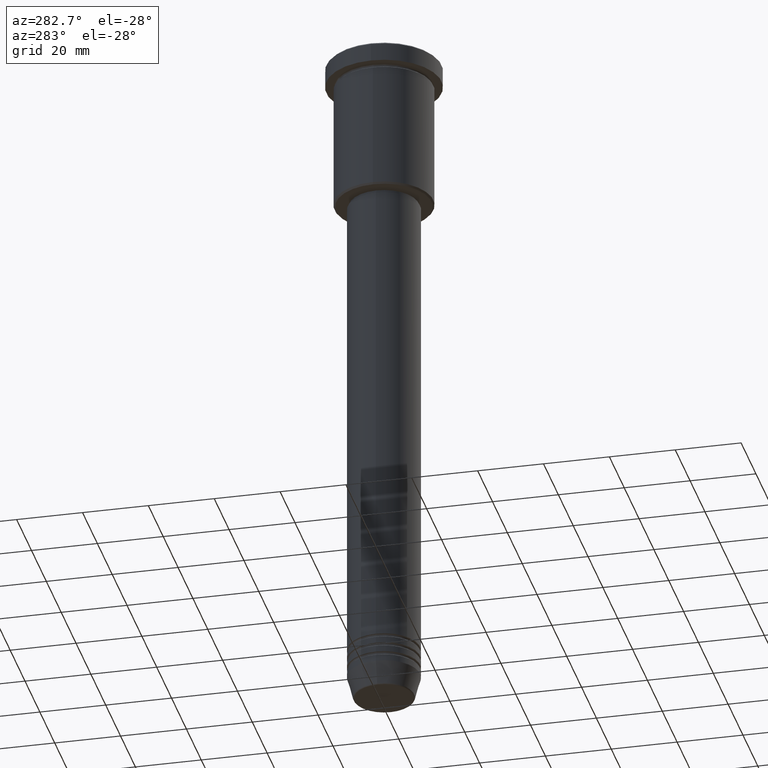
[diagram: clean part render]
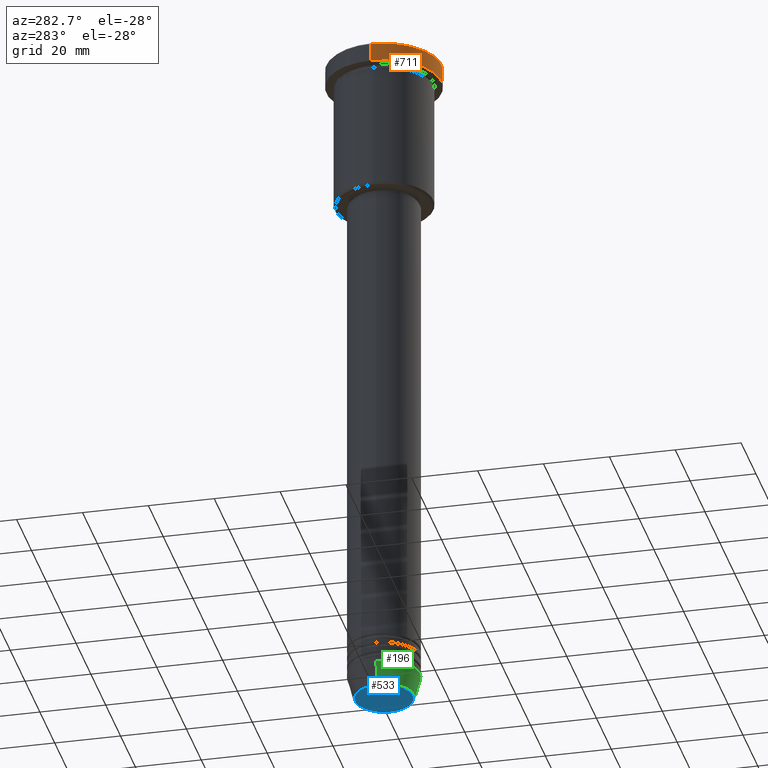
[diagram: same view with three faces highlighted in distinct colors, each labeled with its STEP entity id]
A machine part, auxiliary view with three faces highlighted in distinct colors.
Their STEP definitions:

[orange] entity #711 — the highlighted cylindrical surface (partial cylindrical patch) has radius 17.5 mm, axis along (-0, -0, 1).
#16 = CYLINDRICAL_SURFACE ( 'NONE', #712, 17.50000000000000000 ) ;
#43 = VERTEX_POINT ( 'NONE', #1178 ) ;
#78 = EDGE_CURVE ( 'NONE', #93, #975, #731, .T. ) ;
#93 = VERTEX_POINT ( 'NONE', #167 ) ;
#104 = VERTEX_POINT ( 'NONE', #607 ) ;
#144 = EDGE_LOOP ( 'NONE', ( #185, #1077, #1013, #362 ) ) ;
#167 = CARTESIAN_POINT ( 'NONE',  ( -17.50000000000000000, 2.143131898507868248E-15, -5.999999999999995559 ) ) ;
#181 = VECTOR ( 'NONE', #648, 1000.000000000000000 ) ;
#185 = ORIENTED_EDGE ( 'NONE', *, *, #1167, .F. ) ;
#217 = AXIS2_PLACEMENT_3D ( 'NONE', #713, #699, #1072 ) ;
#280 = CARTESIAN_POINT ( 'NONE',  ( -17.50000000000000000, 2.143131898507868248E-15, 0.000000000000000000 ) ) ;
#353 = EDGE_CURVE ( 'NONE', #104, #43, #870, .T. ) ;
#362 = ORIENTED_EDGE ( 'NONE', *, *, #353, .T. ) ;
#367 = VECTOR ( 'NONE', #943, 1000.000000000000000 ) ;
#463 = FACE_OUTER_BOUND ( 'NONE', #144, .T. ) ;
#470 = DIRECTION ( 'NONE',  ( 0.000000000000000000, 0.000000000000000000, -1.000000000000000000 ) ) ;
#516 = DIRECTION ( 'NONE',  ( 1.000000000000000000, 0.000000000000000000, 0.000000000000000000 ) ) ;
#574 = LINE ( 'NONE', #1032, #367 ) ;
#590 = EDGE_CURVE ( 'NONE', #975, #104, #574, .T. ) ;
#606 = CARTESIAN_POINT ( 'NONE',  ( 0.000000000000000000, 0.000000000000000000, 0.000000000000000000 ) ) ;
#607 = CARTESIAN_POINT ( 'NONE',  ( 17.50000000000000000, 0.000000000000000000, -0.5000000000000559552 ) ) ;
#636 = LINE ( 'NONE', #280, #181 ) ;
#648 = DIRECTION ( 'NONE',  ( -0.000000000000000000, -0.000000000000000000, 1.000000000000000000 ) ) ;
#650 = CARTESIAN_POINT ( 'NONE',  ( 0.000000000000000000, 0.000000000000000000, -0.5000000000000559552 ) ) ;
#675 = AXIS2_PLACEMENT_3D ( 'NONE', #650, #470, #747 ) ;
#699 = DIRECTION ( 'NONE',  ( -0.000000000000000000, -0.000000000000000000, 1.000000000000000000 ) ) ;
#711 = ADVANCED_FACE ( 'NONE', ( #463 ), #16, .T. ) ;
#712 = AXIS2_PLACEMENT_3D ( 'NONE', #606, #973, #516 ) ;
#713 = CARTESIAN_POINT ( 'NONE',  ( 0.000000000000000000, 0.000000000000000000, -5.999999999999995559 ) ) ;
#731 = CIRCLE ( 'NONE', #217, 17.50000000000000000 ) ;
#747 = DIRECTION ( 'NONE',  ( 1.000000000000000000, 0.000000000000000000, 0.000000000000000000 ) ) ;
#870 = CIRCLE ( 'NONE', #675, 17.50000000000000000 ) ;
#896 = CARTESIAN_POINT ( 'NONE',  ( 17.50000000000000000, 0.000000000000000000, -5.999999999999995559 ) ) ;
#943 = DIRECTION ( 'NONE',  ( -0.000000000000000000, -0.000000000000000000, 1.000000000000000000 ) ) ;
#973 = DIRECTION ( 'NONE',  ( -0.000000000000000000, -0.000000000000000000, 1.000000000000000000 ) ) ;
#975 = VERTEX_POINT ( 'NONE', #896 ) ;
#1013 = ORIENTED_EDGE ( 'NONE', *, *, #590, .T. ) ;
#1032 = CARTESIAN_POINT ( 'NONE',  ( 17.50000000000000000, 0.000000000000000000, 0.000000000000000000 ) ) ;
#1072 = DIRECTION ( 'NONE',  ( 1.000000000000000000, 0.000000000000000000, 0.000000000000000000 ) ) ;
#1077 = ORIENTED_EDGE ( 'NONE', *, *, #78, .T. ) ;
#1167 = EDGE_CURVE ( 'NONE', #93, #43, #636, .T. ) ;
#1178 = CARTESIAN_POINT ( 'NONE',  ( -17.50000000000000000, 2.143131898507868248E-15, -0.5000000000000559552 ) ) ;

[blue] entity #533 — the highlighted planar face has unit normal (0, -0, 1).
#30 = AXIS2_PLACEMENT_3D ( 'NONE', #775, #689, #321 ) ;
#83 = AXIS2_PLACEMENT_3D ( 'NONE', #1014, #1036, #663 ) ;
#172 = EDGE_CURVE ( 'NONE', #298, #948, #458, .T. ) ;
#182 = CARTESIAN_POINT ( 'NONE',  ( -8.740692158992663607, 1.099999016768740442E-15, -211.0000000000000284 ) ) ;
#298 = VERTEX_POINT ( 'NONE', #182 ) ;
#309 = CARTESIAN_POINT ( 'NONE',  ( 0.000000000000000000, 0.000000000000000000, -211.0000000000000284 ) ) ;
#317 = FACE_OUTER_BOUND ( 'NONE', #473, .T. ) ;
#321 = DIRECTION ( 'NONE',  ( 1.000000000000000000, 0.000000000000000000, 0.000000000000000000 ) ) ;
#365 = AXIS2_PLACEMENT_3D ( 'NONE', #309, #612, #1160 ) ;
#458 = CIRCLE ( 'NONE', #365, 8.740692158992663607 ) ;
#473 = EDGE_LOOP ( 'NONE', ( #1070, #1047 ) ) ;
#501 = CARTESIAN_POINT ( 'NONE',  ( 8.740692158992663607, 0.000000000000000000, -211.0000000000000284 ) ) ;
#507 = CIRCLE ( 'NONE', #83, 8.740692158992663607 ) ;
#533 = ADVANCED_FACE ( 'NONE', ( #317 ), #1041, .F. ) ;
#612 = DIRECTION ( 'NONE',  ( 0.000000000000000000, 0.000000000000000000, -1.000000000000000000 ) ) ;
#663 = DIRECTION ( 'NONE',  ( 1.000000000000000000, 0.000000000000000000, 0.000000000000000000 ) ) ;
#689 = DIRECTION ( 'NONE',  ( 0.000000000000000000, -0.000000000000000000, 1.000000000000000000 ) ) ;
#775 = CARTESIAN_POINT ( 'NONE',  ( 0.000000000000000000, 0.000000000000000000, -211.0000000000000284 ) ) ;
#802 = EDGE_CURVE ( 'NONE', #948, #298, #507, .T. ) ;
#948 = VERTEX_POINT ( 'NONE', #501 ) ;
#1014 = CARTESIAN_POINT ( 'NONE',  ( 0.000000000000000000, 0.000000000000000000, -211.0000000000000284 ) ) ;
#1036 = DIRECTION ( 'NONE',  ( 0.000000000000000000, 0.000000000000000000, -1.000000000000000000 ) ) ;
#1041 = PLANE ( 'NONE',  #30 ) ;
#1047 = ORIENTED_EDGE ( 'NONE', *, *, #172, .T. ) ;
#1070 = ORIENTED_EDGE ( 'NONE', *, *, #802, .T. ) ;
#1160 = DIRECTION ( 'NONE',  ( 1.000000000000000000, 0.000000000000000000, 0.000000000000000000 ) ) ;

[green] entity #196 — the highlighted conical surface has half-angle 15 deg.
#32 = EDGE_CURVE ( 'NONE', #209, #633, #437, .T. ) ;
#51 = CIRCLE ( 'NONE', #237, 11.00000000000000000 ) ;
#82 = VECTOR ( 'NONE', #1082, 1000.000000000000000 ) ;
#150 = CARTESIAN_POINT ( 'NONE',  ( 11.00000000000000000, 0.000000000000000000, -204.0000000000000284 ) ) ;
#178 = CONICAL_SURFACE ( 'NONE', #657, 11.00000000000000000, 0.2617993877991500740 ) ;
#196 = ADVANCED_FACE ( 'NONE', ( #1060 ), #178, .T. ) ;
#209 = VERTEX_POINT ( 'NONE', #632 ) ;
#221 = EDGE_CURVE ( 'NONE', #890, #449, #51, .T. ) ;
#228 = ORIENTED_EDGE ( 'NONE', *, *, #32, .T. ) ;
#237 = AXIS2_PLACEMENT_3D ( 'NONE', #1089, #281, #906 ) ;
#247 = EDGE_CURVE ( 'NONE', #209, #890, #454, .T. ) ;
#267 = CARTESIAN_POINT ( 'NONE',  ( -11.00000000000000000, 1.347111479062088405E-15, -204.0000000000000284 ) ) ;
#268 = CARTESIAN_POINT ( 'NONE',  ( -11.00000000000000000, 1.347111479062088405E-15, -204.0000000000000284 ) ) ;
#281 = DIRECTION ( 'NONE',  ( -0.000000000000000000, -0.000000000000000000, 1.000000000000000000 ) ) ;
#337 = DIRECTION ( 'NONE',  ( 1.000000000000000000, 0.000000000000000000, 0.000000000000000000 ) ) ;
#375 = ORIENTED_EDGE ( 'NONE', *, *, #247, .F. ) ;
#437 = CIRCLE ( 'NONE', #611, 9.223655072137194821 ) ;
#449 = VERTEX_POINT ( 'NONE', #150 ) ;
#454 = LINE ( 'NONE', #268, #82 ) ;
#556 = DIRECTION ( 'NONE',  ( -0.000000000000000000, -0.000000000000000000, 1.000000000000000000 ) ) ;
#591 = LINE ( 'NONE', #702, #910 ) ;
#609 = DIRECTION ( 'NONE',  ( -0.000000000000000000, -0.000000000000000000, 1.000000000000000000 ) ) ;
#611 = AXIS2_PLACEMENT_3D ( 'NONE', #1169, #609, #337 ) ;
#622 = ORIENTED_EDGE ( 'NONE', *, *, #221, .F. ) ;
#632 = CARTESIAN_POINT ( 'NONE',  ( -9.223655072137194821, 1.238341722557647596E-15, -210.6294095225512706 ) ) ;
#633 = VERTEX_POINT ( 'NONE', #789 ) ;
#657 = AXIS2_PLACEMENT_3D ( 'NONE', #1097, #556, #926 ) ;
#668 = ORIENTED_EDGE ( 'NONE', *, *, #939, .T. ) ;
#702 = CARTESIAN_POINT ( 'NONE',  ( 11.00000000000000000, 0.000000000000000000, -204.0000000000000284 ) ) ;
#749 = EDGE_LOOP ( 'NONE', ( #375, #228, #668, #622 ) ) ;
#789 = CARTESIAN_POINT ( 'NONE',  ( 9.223655072137194821, 0.000000000000000000, -210.6294095225512706 ) ) ;
#890 = VERTEX_POINT ( 'NONE', #267 ) ;
#906 = DIRECTION ( 'NONE',  ( 1.000000000000000000, 0.000000000000000000, 0.000000000000000000 ) ) ;
#910 = VECTOR ( 'NONE', #960, 1000.000000000000000 ) ;
#926 = DIRECTION ( 'NONE',  ( 1.000000000000000000, 0.000000000000000000, 0.000000000000000000 ) ) ;
#939 = EDGE_CURVE ( 'NONE', #633, #449, #591, .T. ) ;
#960 = DIRECTION ( 'NONE',  ( 0.2588190451025213501, 0.000000000000000000, 0.9659258262890680902 ) ) ;
#1060 = FACE_OUTER_BOUND ( 'NONE', #749, .T. ) ;
#1082 = DIRECTION ( 'NONE',  ( -0.2588190451025213501, 3.169619151431772337E-17, 0.9659258262890680902 ) ) ;
#1089 = CARTESIAN_POINT ( 'NONE',  ( 0.000000000000000000, 0.000000000000000000, -204.0000000000000284 ) ) ;
#1097 = CARTESIAN_POINT ( 'NONE',  ( 0.000000000000000000, 0.000000000000000000, -204.0000000000000284 ) ) ;
#1169 = CARTESIAN_POINT ( 'NONE',  ( 0.000000000000000000, 0.000000000000000000, -210.6294095225512706 ) ) ;